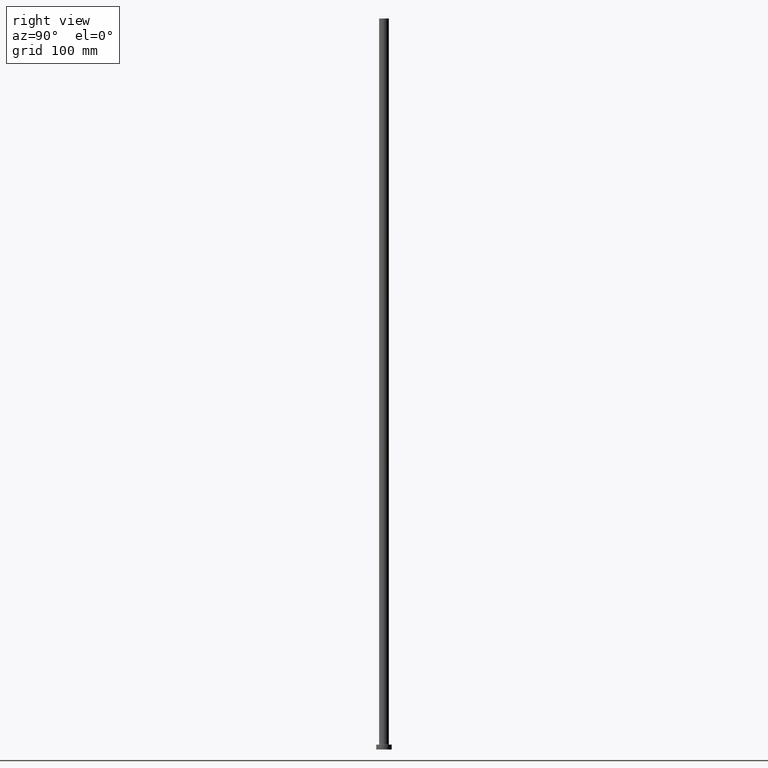
[diagram: clean part render]
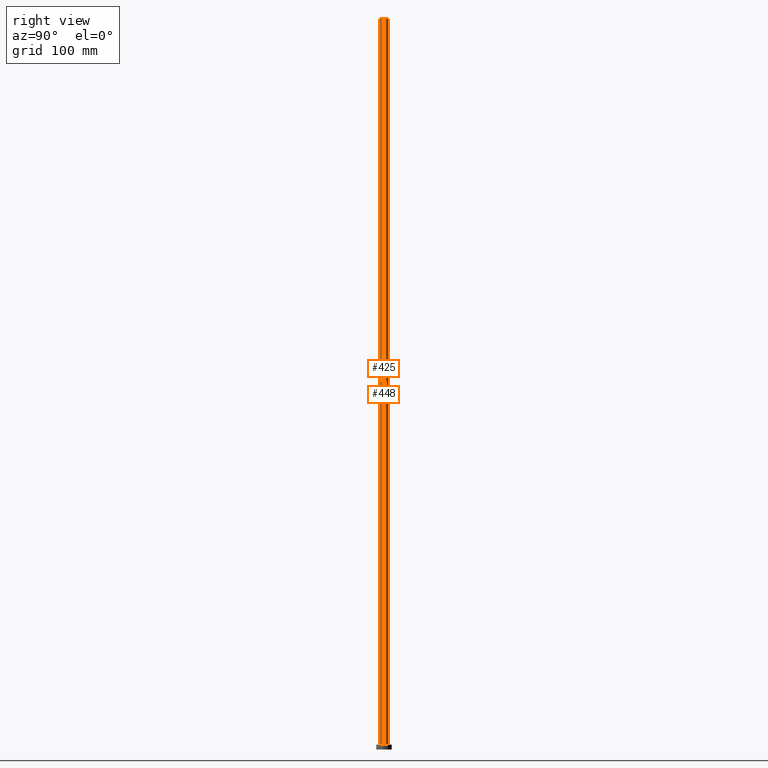
[diagram: same view with one multi-face feature highlighted, each face labeled with its STEP entity id]
A machine part, right view. The highlighted faces form ONE feature: a constant-radius fillet chain: 2 tangent blend faces with common blend radius 5 mm. The faces share edges in the B-rep.
Their STEP definitions:
[1] entity #425 (Cylinder):
#15 = VECTOR ( 'NONE', #280, 1000.000000000000000 ) ;
#30 = CARTESIAN_POINT ( 'NONE',  ( 0.000000000000000000, 0.000000000000000000, 750.0000000000000000 ) ) ;
#34 = AXIS2_PLACEMENT_3D ( 'NONE', #50, #343, #97 ) ;
#50 = CARTESIAN_POINT ( 'NONE',  ( 0.000000000000000000, 0.000000000000000000, 5.499999999999949374 ) ) ;
#57 = CARTESIAN_POINT ( 'NONE',  ( -5.000000000000000000, 0.000000000000000000, 750.0000000000000000 ) ) ;
#67 = DIRECTION ( 'NONE',  ( -1.000000000000000000, 0.000000000000000000, 0.000000000000000000 ) ) ;
#77 = VECTOR ( 'NONE', #269, 1000.000000000000000 ) ;
#90 = CARTESIAN_POINT ( 'NONE',  ( 5.000000000000000000, 6.123233995736766282E-16, 750.0000000000000000 ) ) ;
#97 = DIRECTION ( 'NONE',  ( 1.000000000000000000, 0.000000000000000000, 0.000000000000000000 ) ) ;
#99 = CARTESIAN_POINT ( 'NONE',  ( 0.000000000000000000, 0.000000000000000000, 750.0000000000000000 ) ) ;
#106 = VERTEX_POINT ( 'NONE', #381 ) ;
#129 = CARTESIAN_POINT ( 'NONE',  ( -5.000000000000000000, 0.000000000000000000, 750.0000000000000000 ) ) ;
#135 = EDGE_CURVE ( 'NONE', #292, #208, #168, .T. ) ;
#142 = ORIENTED_EDGE ( 'NONE', *, *, #135, .T. ) ;
#147 = AXIS2_PLACEMENT_3D ( 'NONE', #99, #205, #354 ) ;
#168 = LINE ( 'NONE', #57, #77 ) ;
#175 = VERTEX_POINT ( 'NONE', #447 ) ;
#176 = DIRECTION ( 'NONE',  ( -0.000000000000000000, -0.000000000000000000, -1.000000000000000000 ) ) ;
#189 = EDGE_CURVE ( 'NONE', #292, #106, #220, .T. ) ;
#202 = ORIENTED_EDGE ( 'NONE', *, *, #189, .F. ) ;
#205 = DIRECTION ( 'NONE',  ( 0.000000000000000000, 0.000000000000000000, 1.000000000000000000 ) ) ;
#207 = ORIENTED_EDGE ( 'NONE', *, *, #247, .T. ) ;
#208 = VERTEX_POINT ( 'NONE', #276 ) ;
#220 = CIRCLE ( 'NONE', #147, 5.000000000000000000 ) ;
#234 = EDGE_CURVE ( 'NONE', #106, #175, #348, .T. ) ;
#244 = CYLINDRICAL_SURFACE ( 'NONE', #417, 5.000000000000000000 ) ;
#247 = EDGE_CURVE ( 'NONE', #208, #175, #351, .T. ) ;
#269 = DIRECTION ( 'NONE',  ( -0.000000000000000000, -0.000000000000000000, -1.000000000000000000 ) ) ;
#276 = CARTESIAN_POINT ( 'NONE',  ( -5.000000000000000000, 0.000000000000000000, 5.499999999999949374 ) ) ;
#280 = DIRECTION ( 'NONE',  ( -0.000000000000000000, -0.000000000000000000, -1.000000000000000000 ) ) ;
#292 = VERTEX_POINT ( 'NONE', #129 ) ;
#343 = DIRECTION ( 'NONE',  ( 0.000000000000000000, 0.000000000000000000, 1.000000000000000000 ) ) ;
#348 = LINE ( 'NONE', #90, #15 ) ;
#351 = CIRCLE ( 'NONE', #34, 5.000000000000000000 ) ;
#354 = DIRECTION ( 'NONE',  ( 1.000000000000000000, 0.000000000000000000, 0.000000000000000000 ) ) ;
#363 = EDGE_LOOP ( 'NONE', ( #393, #202, #142, #207 ) ) ;
#381 = CARTESIAN_POINT ( 'NONE',  ( 5.000000000000000000, 6.123233995736766282E-16, 750.0000000000000000 ) ) ;
#393 = ORIENTED_EDGE ( 'NONE', *, *, #234, .F. ) ;
#416 = FACE_OUTER_BOUND ( 'NONE', #363, .T. ) ;
#417 = AXIS2_PLACEMENT_3D ( 'NONE', #30, #176, #67 ) ;
#425 = ADVANCED_FACE ( 'NONE', ( #416 ), #244, .T. ) ;
#447 = CARTESIAN_POINT ( 'NONE',  ( 5.000000000000000000, 6.123233995736766282E-16, 5.499999999999949374 ) ) ;
[2] entity #448 (Cylinder):
#15 = VECTOR ( 'NONE', #280, 1000.000000000000000 ) ;
#17 = CARTESIAN_POINT ( 'NONE',  ( 0.000000000000000000, 0.000000000000000000, 5.499999999999949374 ) ) ;
#18 = FACE_OUTER_BOUND ( 'NONE', #286, .T. ) ;
#28 = CARTESIAN_POINT ( 'NONE',  ( 0.000000000000000000, 0.000000000000000000, 750.0000000000000000 ) ) ;
#40 = CARTESIAN_POINT ( 'NONE',  ( 0.000000000000000000, 0.000000000000000000, 750.0000000000000000 ) ) ;
#57 = CARTESIAN_POINT ( 'NONE',  ( -5.000000000000000000, 0.000000000000000000, 750.0000000000000000 ) ) ;
#77 = VECTOR ( 'NONE', #269, 1000.000000000000000 ) ;
#90 = CARTESIAN_POINT ( 'NONE',  ( 5.000000000000000000, 6.123233995736766282E-16, 750.0000000000000000 ) ) ;
#101 = AXIS2_PLACEMENT_3D ( 'NONE', #28, #171, #390 ) ;
#106 = VERTEX_POINT ( 'NONE', #381 ) ;
#116 = AXIS2_PLACEMENT_3D ( 'NONE', #40, #303, #382 ) ;
#129 = CARTESIAN_POINT ( 'NONE',  ( -5.000000000000000000, 0.000000000000000000, 750.0000000000000000 ) ) ;
#133 = ORIENTED_EDGE ( 'NONE', *, *, #135, .F. ) ;
#135 = EDGE_CURVE ( 'NONE', #292, #208, #168, .T. ) ;
#168 = LINE ( 'NONE', #57, #77 ) ;
#171 = DIRECTION ( 'NONE',  ( 0.000000000000000000, 0.000000000000000000, 1.000000000000000000 ) ) ;
#175 = VERTEX_POINT ( 'NONE', #447 ) ;
#178 = CIRCLE ( 'NONE', #231, 5.000000000000000000 ) ;
#195 = EDGE_CURVE ( 'NONE', #106, #292, #203, .T. ) ;
#203 = CIRCLE ( 'NONE', #101, 5.000000000000000000 ) ;
#206 = ORIENTED_EDGE ( 'NONE', *, *, #234, .T. ) ;
#208 = VERTEX_POINT ( 'NONE', #276 ) ;
#231 = AXIS2_PLACEMENT_3D ( 'NONE', #17, #277, #414 ) ;
#234 = EDGE_CURVE ( 'NONE', #106, #175, #348, .T. ) ;
#269 = DIRECTION ( 'NONE',  ( -0.000000000000000000, -0.000000000000000000, -1.000000000000000000 ) ) ;
#276 = CARTESIAN_POINT ( 'NONE',  ( -5.000000000000000000, 0.000000000000000000, 5.499999999999949374 ) ) ;
#277 = DIRECTION ( 'NONE',  ( 0.000000000000000000, 0.000000000000000000, 1.000000000000000000 ) ) ;
#280 = DIRECTION ( 'NONE',  ( -0.000000000000000000, -0.000000000000000000, -1.000000000000000000 ) ) ;
#286 = EDGE_LOOP ( 'NONE', ( #458, #206, #385, #133 ) ) ;
#292 = VERTEX_POINT ( 'NONE', #129 ) ;
#298 = EDGE_CURVE ( 'NONE', #175, #208, #178, .T. ) ;
#303 = DIRECTION ( 'NONE',  ( -0.000000000000000000, -0.000000000000000000, -1.000000000000000000 ) ) ;
#342 = CYLINDRICAL_SURFACE ( 'NONE', #116, 5.000000000000000000 ) ;
#348 = LINE ( 'NONE', #90, #15 ) ;
#381 = CARTESIAN_POINT ( 'NONE',  ( 5.000000000000000000, 6.123233995736766282E-16, 750.0000000000000000 ) ) ;
#382 = DIRECTION ( 'NONE',  ( -1.000000000000000000, 0.000000000000000000, 0.000000000000000000 ) ) ;
#385 = ORIENTED_EDGE ( 'NONE', *, *, #298, .T. ) ;
#390 = DIRECTION ( 'NONE',  ( 1.000000000000000000, 0.000000000000000000, 0.000000000000000000 ) ) ;
#414 = DIRECTION ( 'NONE',  ( 1.000000000000000000, 0.000000000000000000, 0.000000000000000000 ) ) ;
#447 = CARTESIAN_POINT ( 'NONE',  ( 5.000000000000000000, 6.123233995736766282E-16, 5.499999999999949374 ) ) ;
#448 = ADVANCED_FACE ( 'NONE', ( #18 ), #342, .T. ) ;
#458 = ORIENTED_EDGE ( 'NONE', *, *, #195, .F. ) ;